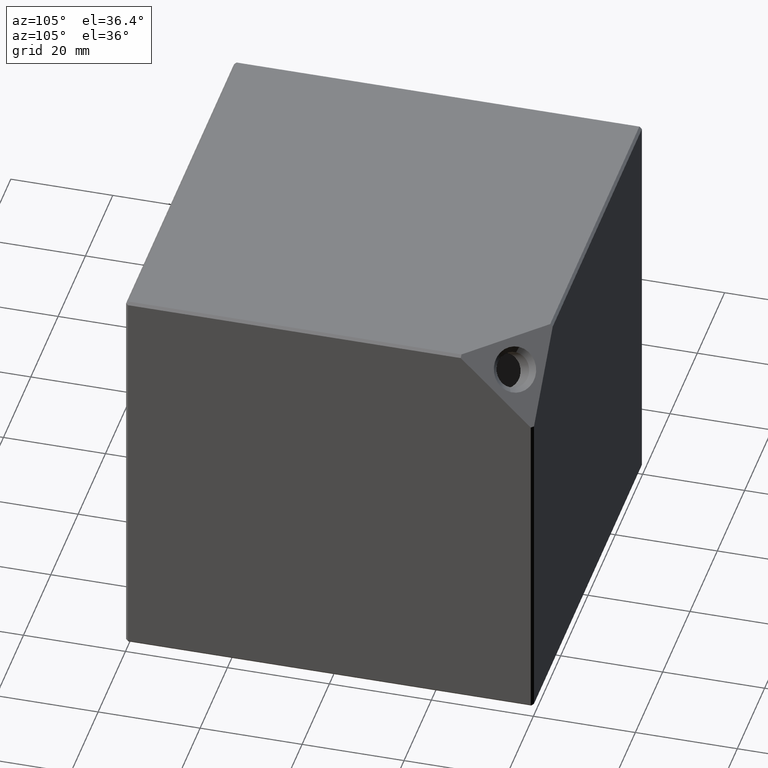
[diagram: clean part render]
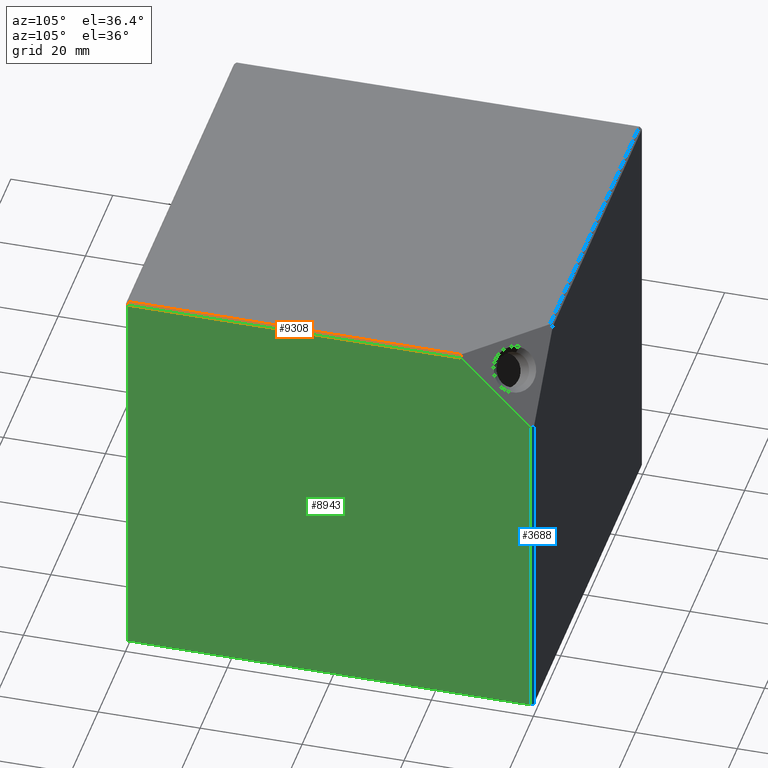
[diagram: same view with three faces highlighted in distinct colors, each labeled with its STEP entity id]
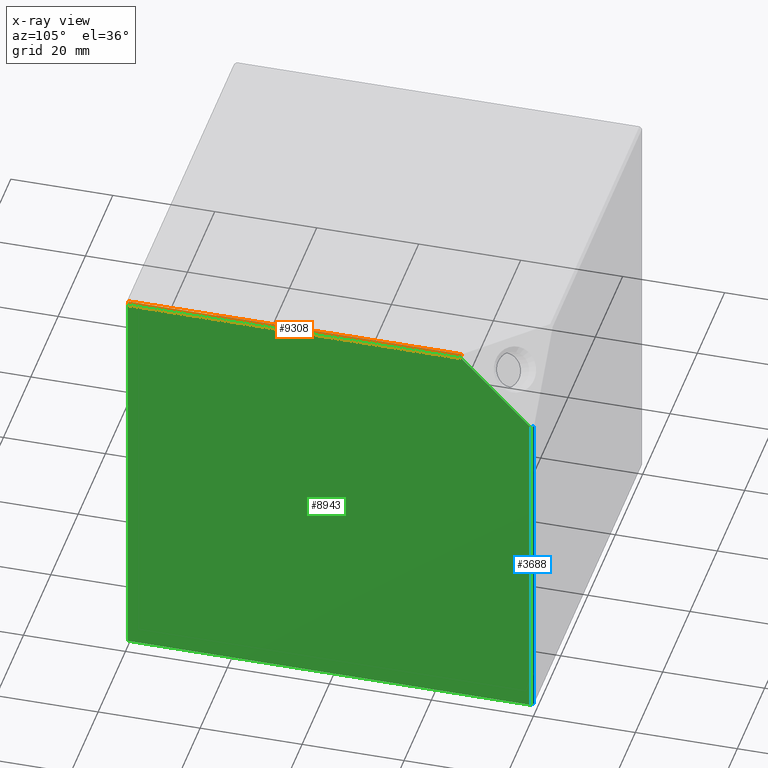
[diagram: x-ray of the same camera — body ghosted, the three highlighted faces saturated]
A machine part, auxiliary view with three faces highlighted in distinct colors.
The next image is the same camera in x-ray (body ghosted, the three faces saturated) — at least one of them is partly hidden behind the body in this view.
Their STEP definitions:

[orange] entity #9308 — the highlighted planar face has unit normal (0.7071, 0, 0.7071).
#892 = AXIS2_PLACEMENT_3D ( 'NONE', #7110, #4989, #11427 ) ;
#1220 = VERTEX_POINT ( 'NONE', #9213 ) ;
#1269 = FACE_OUTER_BOUND ( 'NONE', #13094, .T. ) ;
#1429 = DIRECTION ( 'NONE',  ( -0.7071067811865574500, -9.903257834875582700E-015, 0.7071067811865376900 ) ) ;
#1557 = EDGE_CURVE ( 'NONE', #4345, #1220, #12431, .T. ) ;
#1979 = EDGE_CURVE ( 'NONE', #12504, #4345, #13840, .T. ) ;
#2554 = VECTOR ( 'NONE', #13004, 1000.000000000000000 ) ;
#2767 = VERTEX_POINT ( 'NONE', #8257 ) ;
#4093 = CARTESIAN_POINT ( 'NONE',  ( 39.50000000000036900, 25.77756813566450600, 39.99999999999963800 ) ) ;
#4345 = VERTEX_POINT ( 'NONE', #10057 ) ;
#4989 = DIRECTION ( 'NONE',  ( 0.7071067811865376900, 1.226634733346682100E-016, 0.7071067811865573400 ) ) ;
#5150 = CARTESIAN_POINT ( 'NONE',  ( 40.00000000000000700, -40.00000000000002100, 39.50000000000002800 ) ) ;
#5205 = EDGE_CURVE ( 'NONE', #1220, #2767, #9407, .T. ) ;
#5311 = CARTESIAN_POINT ( 'NONE',  ( 40.00000000000000700, -39.50000000000002800, 39.50000000000002800 ) ) ;
#5319 = VECTOR ( 'NONE', #1429, 1000.000000000000000 ) ;
#5365 = ORIENTED_EDGE ( 'NONE', *, *, #1557, .F. ) ;
#6117 = DIRECTION ( 'NONE',  ( 0.7071067811865574500, -1.954582684240880500E-014, -0.7071067811865376900 ) ) ;
#6193 = DIRECTION ( 'NONE',  ( -1.734723475976806800E-016, 1.000000000000000000, 0.0000000000000000000 ) ) ;
#6777 = VECTOR ( 'NONE', #6117, 999.9999999999998900 ) ;
#7110 = CARTESIAN_POINT ( 'NONE',  ( 39.50000000000001400, 6.852157730108389600E-015, 40.00000000000000000 ) ) ;
#7607 = LINE ( 'NONE', #5150, #2554 ) ;
#8257 = CARTESIAN_POINT ( 'NONE',  ( 39.99999999999999300, 25.77756813566449200, 39.50000000000002800 ) ) ;
#8636 = VECTOR ( 'NONE', #6193, 1000.000000000000000 ) ;
#9213 = CARTESIAN_POINT ( 'NONE',  ( 39.50000000000000700, 25.77756813566450900, 40.00000000000000000 ) ) ;
#9308 = ADVANCED_FACE ( 'NONE', ( #1269 ), #10364, .T. ) ;
#9407 = LINE ( 'NONE', #4093, #6777 ) ;
#10057 = CARTESIAN_POINT ( 'NONE',  ( 39.50000000000002100, -39.50000000000003600, 40.00000000000000000 ) ) ;
#10364 = PLANE ( 'NONE',  #892 ) ;
#10438 = CARTESIAN_POINT ( 'NONE',  ( 39.50000000000000700, 25.27756813566450600, 40.00000000000000000 ) ) ;
#10740 = EDGE_CURVE ( 'NONE', #2767, #12504, #7607, .T. ) ;
#11271 = ORIENTED_EDGE ( 'NONE', *, *, #1979, .F. ) ;
#11427 = DIRECTION ( 'NONE',  ( 1.734723475976806800E-016, -1.000000000000000000, 0.0000000000000000000 ) ) ;
#11637 = ORIENTED_EDGE ( 'NONE', *, *, #5205, .F. ) ;
#12431 = LINE ( 'NONE', #10438, #8636 ) ;
#12447 = CARTESIAN_POINT ( 'NONE',  ( 39.50000000000002100, -39.50000000000003600, 40.00000000000000000 ) ) ;
#12504 = VERTEX_POINT ( 'NONE', #5311 ) ;
#13004 = DIRECTION ( 'NONE',  ( 1.734723475976806800E-016, -1.000000000000000000, 0.0000000000000000000 ) ) ;
#13094 = EDGE_LOOP ( 'NONE', ( #11637, #5365, #11271, #14145 ) ) ;
#13840 = LINE ( 'NONE', #12447, #5319 ) ;
#14145 = ORIENTED_EDGE ( 'NONE', *, *, #10740, .F. ) ;

[blue] entity #3688 — the highlighted planar face has unit normal (-0.7071, -0.7071, -0).
#636 = PLANE ( 'NONE',  #13269 ) ;
#843 = DIRECTION ( 'NONE',  ( 0.7071067811865573400, -0.7071067811865378000, -1.196099074440456300E-016 ) ) ;
#1703 = ORIENTED_EDGE ( 'NONE', *, *, #6875, .F. ) ;
#1808 = CARTESIAN_POINT ( 'NONE',  ( 39.99999999999999300, 39.50000000000001400, -39.50000000000001400 ) ) ;
#1823 = CARTESIAN_POINT ( 'NONE',  ( 39.49999999999999300, 39.99999999999999300, 25.77756813566452700 ) ) ;
#1912 = ORIENTED_EDGE ( 'NONE', *, *, #9488, .F. ) ;
#3113 = EDGE_LOOP ( 'NONE', ( #1703, #8397, #8121, #1912 ) ) ;
#3502 = VERTEX_POINT ( 'NONE', #4433 ) ;
#3688 = ADVANCED_FACE ( 'NONE', ( #12719 ), #636, .F. ) ;
#3715 = DIRECTION ( 'NONE',  ( -0.7071067811865574500, 0.7071067811865376900, 1.974607202014069600E-014 ) ) ;
#4115 = LINE ( 'NONE', #1808, #7939 ) ;
#4433 = CARTESIAN_POINT ( 'NONE',  ( 39.99999999999999300, 39.50000000000001400, -39.50000000000001400 ) ) ;
#5005 = DIRECTION ( 'NONE',  ( 0.0000000000000000000, 0.0000000000000000000, -1.000000000000000000 ) ) ;
#6035 = CARTESIAN_POINT ( 'NONE',  ( 39.50000000000000700, 39.99999999999998600, -39.50000000000001400 ) ) ;
#6181 = VERTEX_POINT ( 'NONE', #1823 ) ;
#6875 = EDGE_CURVE ( 'NONE', #14056, #6181, #13637, .T. ) ;
#7759 = EDGE_CURVE ( 'NONE', #3502, #14056, #10505, .T. ) ;
#7939 = VECTOR ( 'NONE', #843, 1000.000000000000000 ) ;
#7947 = DIRECTION ( 'NONE',  ( 0.0000000000000000000, 0.0000000000000000000, 1.000000000000000000 ) ) ;
#8121 = ORIENTED_EDGE ( 'NONE', *, *, #11561, .F. ) ;
#8319 = LINE ( 'NONE', #12756, #10930 ) ;
#8397 = ORIENTED_EDGE ( 'NONE', *, *, #7759, .F. ) ;
#9309 = CARTESIAN_POINT ( 'NONE',  ( 39.49999999999980800, 40.00000000000018500, 25.77756813566452400 ) ) ;
#9355 = VERTEX_POINT ( 'NONE', #6035 ) ;
#9488 = EDGE_CURVE ( 'NONE', #6181, #9355, #8319, .T. ) ;
#9988 = VECTOR ( 'NONE', #7947, 1000.000000000000000 ) ;
#10505 = LINE ( 'NONE', #12451, #9988 ) ;
#10930 = VECTOR ( 'NONE', #5005, 1000.000000000000000 ) ;
#11217 = VECTOR ( 'NONE', #3715, 1000.000000000000000 ) ;
#11561 = EDGE_CURVE ( 'NONE', #9355, #3502, #4115, .T. ) ;
#12451 = CARTESIAN_POINT ( 'NONE',  ( 39.99999999999999300, 39.50000000000001400, 40.00000000000000000 ) ) ;
#12719 = FACE_OUTER_BOUND ( 'NONE', #3113, .T. ) ;
#12756 = CARTESIAN_POINT ( 'NONE',  ( 39.50000000000000700, 39.99999999999998600, 40.00000000000000000 ) ) ;
#13269 = AXIS2_PLACEMENT_3D ( 'NONE', #13745, #13797, #13846 ) ;
#13637 = LINE ( 'NONE', #9309, #11217 ) ;
#13745 = CARTESIAN_POINT ( 'NONE',  ( 39.50000000000000700, 39.99999999999998600, 40.00000000000000000 ) ) ;
#13797 = DIRECTION ( 'NONE',  ( -0.7071067811865376900, -0.7071067811865573400, -0.0000000000000000000 ) ) ;
#13846 = DIRECTION ( 'NONE',  ( 0.0000000000000000000, 0.0000000000000000000, -1.000000000000000000 ) ) ;
#14038 = CARTESIAN_POINT ( 'NONE',  ( 39.99999999999999300, 39.50000000000001400, 25.77756813566450900 ) ) ;
#14056 = VERTEX_POINT ( 'NONE', #14038 ) ;

[green] entity #8943 — the highlighted planar face has unit normal (-1, -0, 0).
#1207 = EDGE_LOOP ( 'NONE', ( #11467, #10941, #11421, #12844, #6402 ) ) ;
#1654 = VECTOR ( 'NONE', #11147, 1000.000000000000000 ) ;
#1768 = VERTEX_POINT ( 'NONE', #14027 ) ;
#1996 = VECTOR ( 'NONE', #13046, 1000.000000000000000 ) ;
#2122 = VECTOR ( 'NONE', #3087, 1000.000000000000000 ) ;
#2338 = LINE ( 'NONE', #3374, #1654 ) ;
#2554 = VECTOR ( 'NONE', #13004, 1000.000000000000000 ) ;
#2767 = VERTEX_POINT ( 'NONE', #8257 ) ;
#3087 = DIRECTION ( 'NONE',  ( 1.226634733346699300E-016, -0.7071067811865476800, 0.7071067811865474600 ) ) ;
#3374 = CARTESIAN_POINT ( 'NONE',  ( 40.00000000000000700, -39.50000000000002800, 40.00000000000000000 ) ) ;
#3502 = VERTEX_POINT ( 'NONE', #4433 ) ;
#4120 = DIRECTION ( 'NONE',  ( -1.000000000000000000, -1.734723475976806800E-016, 0.0000000000000000000 ) ) ;
#4433 = CARTESIAN_POINT ( 'NONE',  ( 39.99999999999999300, 39.50000000000001400, -39.50000000000001400 ) ) ;
#5150 = CARTESIAN_POINT ( 'NONE',  ( 40.00000000000000700, -40.00000000000002100, 39.50000000000002800 ) ) ;
#5311 = CARTESIAN_POINT ( 'NONE',  ( 40.00000000000000700, -39.50000000000002800, 39.50000000000002800 ) ) ;
#6168 = EDGE_CURVE ( 'NONE', #1768, #3502, #10178, .T. ) ;
#6371 = CARTESIAN_POINT ( 'NONE',  ( 39.99999999999999300, 32.63878406783225500, 32.63878406783226200 ) ) ;
#6402 = ORIENTED_EDGE ( 'NONE', *, *, #7759, .T. ) ;
#6989 = FACE_OUTER_BOUND ( 'NONE', #1207, .T. ) ;
#7607 = LINE ( 'NONE', #5150, #2554 ) ;
#7759 = EDGE_CURVE ( 'NONE', #3502, #14056, #10505, .T. ) ;
#7947 = DIRECTION ( 'NONE',  ( 0.0000000000000000000, 0.0000000000000000000, 1.000000000000000000 ) ) ;
#8257 = CARTESIAN_POINT ( 'NONE',  ( 39.99999999999999300, 25.77756813566449200, 39.50000000000002800 ) ) ;
#8584 = CARTESIAN_POINT ( 'NONE',  ( 39.99999999999999300, 39.99999999999998600, 40.00000000000000000 ) ) ;
#8629 = CARTESIAN_POINT ( 'NONE',  ( 39.99999999999999300, 39.99999999999998600, -39.50000000000001400 ) ) ;
#8943 = ADVANCED_FACE ( 'NONE', ( #6989 ), #14072, .F. ) ;
#9057 = EDGE_CURVE ( 'NONE', #14056, #2767, #12374, .T. ) ;
#9912 = AXIS2_PLACEMENT_3D ( 'NONE', #8584, #4120, #11881 ) ;
#9988 = VECTOR ( 'NONE', #7947, 1000.000000000000000 ) ;
#10178 = LINE ( 'NONE', #8629, #1996 ) ;
#10505 = LINE ( 'NONE', #12451, #9988 ) ;
#10740 = EDGE_CURVE ( 'NONE', #2767, #12504, #7607, .T. ) ;
#10941 = ORIENTED_EDGE ( 'NONE', *, *, #10740, .T. ) ;
#11147 = DIRECTION ( 'NONE',  ( 0.0000000000000000000, 0.0000000000000000000, -1.000000000000000000 ) ) ;
#11421 = ORIENTED_EDGE ( 'NONE', *, *, #12860, .T. ) ;
#11467 = ORIENTED_EDGE ( 'NONE', *, *, #9057, .T. ) ;
#11881 = DIRECTION ( 'NONE',  ( 1.734723475976806800E-016, -1.000000000000000000, 0.0000000000000000000 ) ) ;
#12374 = LINE ( 'NONE', #6371, #2122 ) ;
#12451 = CARTESIAN_POINT ( 'NONE',  ( 39.99999999999999300, 39.50000000000001400, 40.00000000000000000 ) ) ;
#12504 = VERTEX_POINT ( 'NONE', #5311 ) ;
#12844 = ORIENTED_EDGE ( 'NONE', *, *, #6168, .T. ) ;
#12860 = EDGE_CURVE ( 'NONE', #12504, #1768, #2338, .T. ) ;
#13004 = DIRECTION ( 'NONE',  ( 1.734723475976806800E-016, -1.000000000000000000, 0.0000000000000000000 ) ) ;
#13046 = DIRECTION ( 'NONE',  ( -1.734723475976806800E-016, 1.000000000000000000, -0.0000000000000000000 ) ) ;
#14027 = CARTESIAN_POINT ( 'NONE',  ( 40.00000000000000700, -39.50000000000002800, -39.50000000000001400 ) ) ;
#14038 = CARTESIAN_POINT ( 'NONE',  ( 39.99999999999999300, 39.50000000000001400, 25.77756813566450900 ) ) ;
#14056 = VERTEX_POINT ( 'NONE', #14038 ) ;
#14072 = PLANE ( 'NONE',  #9912 ) ;